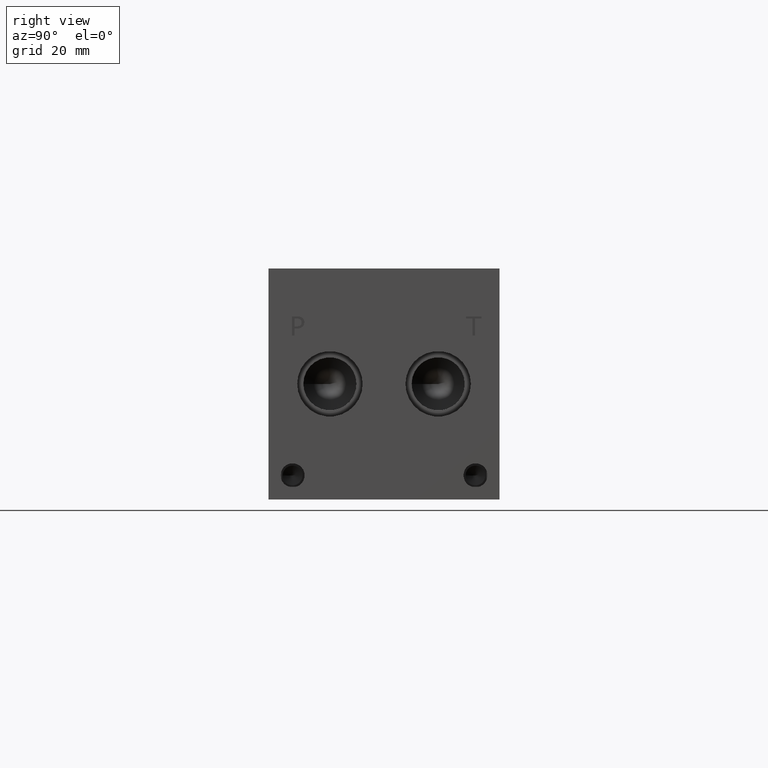
[diagram: clean part render]
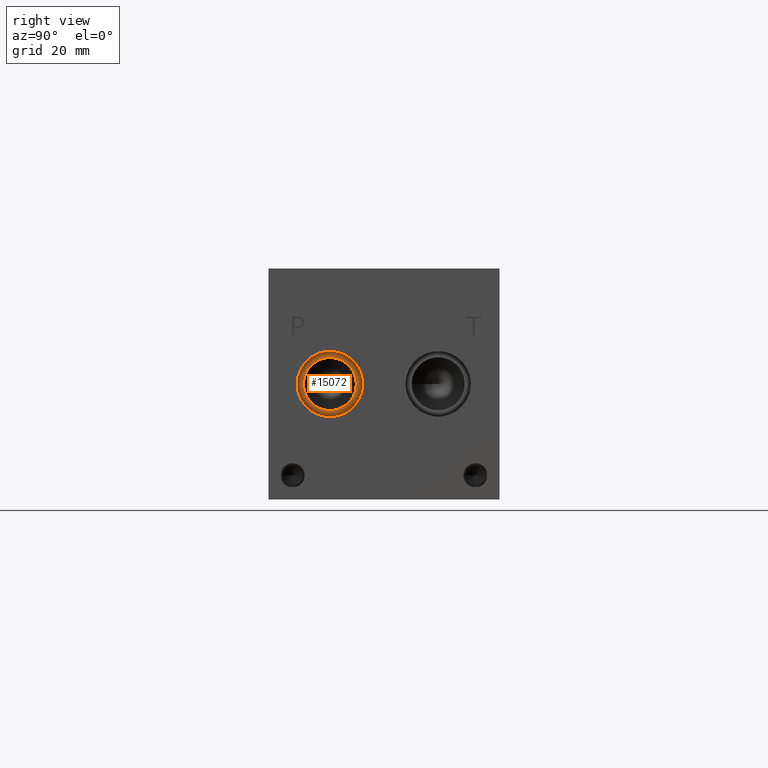
[diagram: same view with one face highlighted and labeled with its STEP entity id]
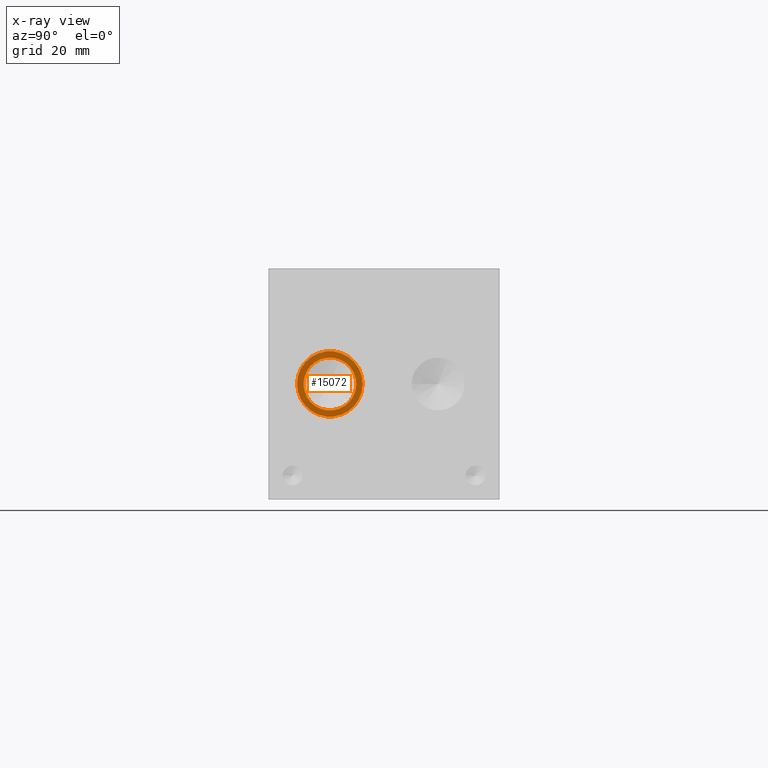
[diagram: x-ray of the same camera — body ghosted, the highlighted face saturated]
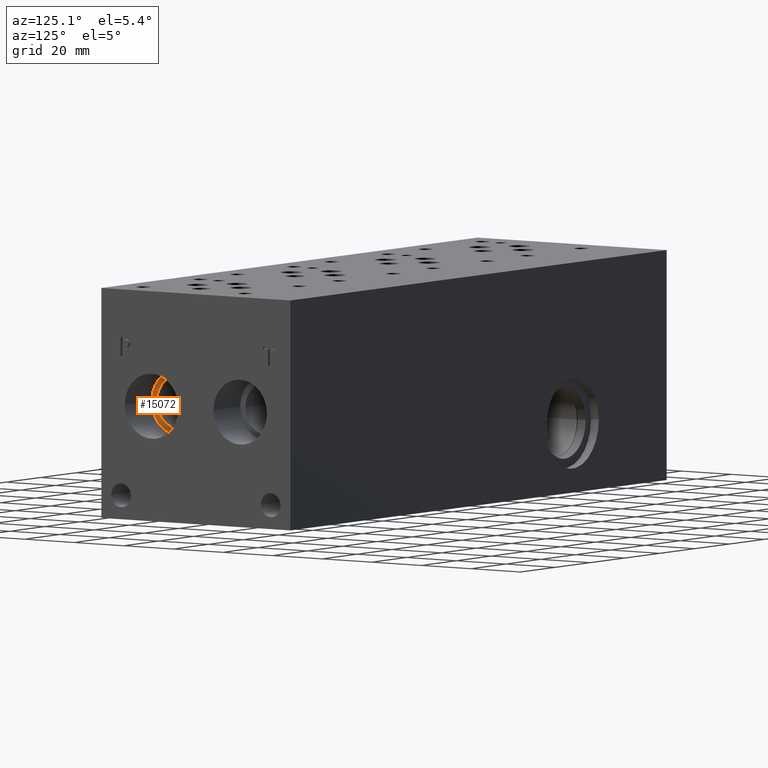
[diagram: same view with one face highlighted and labeled with its STEP entity id]
A machine part, right view. The second image highlights one B-rep face of the part: STEP entity #15072.
The next image is the same camera in x-ray: the body ghosted, the highlighted face saturated — about 0% of this face is hidden behind the body in this view.
A second angle (auxiliary view) of the same face is appended — the face is thin or edge-on in the first view.
In plain terms, the highlighted planar face has unit normal (1, 0, 0).
Its self-contained STEP definition (entity closure, byte-faithful):
#466=CIRCLE('',#15971,10.795);
#467=CIRCLE('',#15972,10.795);
#468=CIRCLE('',#15973,8.7376);
#624=FACE_BOUND('',#2850,.T.);
#1968=FACE_OUTER_BOUND('',#2849,.T.);
#2849=EDGE_LOOP('',(#13063,#13064));
#2850=EDGE_LOOP('',(#13065));
#7042=VERTEX_POINT('',#25875);
#7043=VERTEX_POINT('',#25876);
#7044=VERTEX_POINT('',#25879);
#9098=EDGE_CURVE('',#7042,#7043,#466,.T.);
#9099=EDGE_CURVE('',#7043,#7042,#467,.T.);
#9100=EDGE_CURVE('',#7044,#7044,#468,.T.);
#13063=ORIENTED_EDGE('',*,*,#9098,.T.);
#13064=ORIENTED_EDGE('',*,*,#9099,.T.);
#13065=ORIENTED_EDGE('',*,*,#9100,.F.);
#13767=PLANE('',#15970);
#15072=ADVANCED_FACE('',(#1968,#624),#13767,.T.);
#15970=AXIS2_PLACEMENT_3D('',#25874,#19079,#19080);
#15971=AXIS2_PLACEMENT_3D('',#25877,#19081,#19082);
#15972=AXIS2_PLACEMENT_3D('',#25878,#19083,#19084);
#15973=AXIS2_PLACEMENT_3D('',#25880,#19085,#19086);
#19079=DIRECTION('center_axis',(1.,0.,0.));
#19080=DIRECTION('ref_axis',(0.,1.,0.));
#19081=DIRECTION('center_axis',(1.,0.,0.));
#19082=DIRECTION('ref_axis',(0.,1.,0.));
#19083=DIRECTION('center_axis',(1.,0.,0.));
#19084=DIRECTION('ref_axis',(0.,1.,0.));
#19085=DIRECTION('center_axis',(1.,0.,0.));
#19086=DIRECTION('ref_axis',(0.,1.,0.));
#25874=CARTESIAN_POINT('Origin',(200.533,20.2438,38.1));
#25875=CARTESIAN_POINT('',(200.533,31.0388,38.1));
#25876=CARTESIAN_POINT('',(200.533,9.4488,38.1));
#25877=CARTESIAN_POINT('Origin',(200.533,20.2438,38.1));
#25878=CARTESIAN_POINT('Origin',(200.533,20.2438,38.1));
#25879=CARTESIAN_POINT('',(200.533,11.5062,38.1));
#25880=CARTESIAN_POINT('Origin',(200.533,20.2438,38.1));